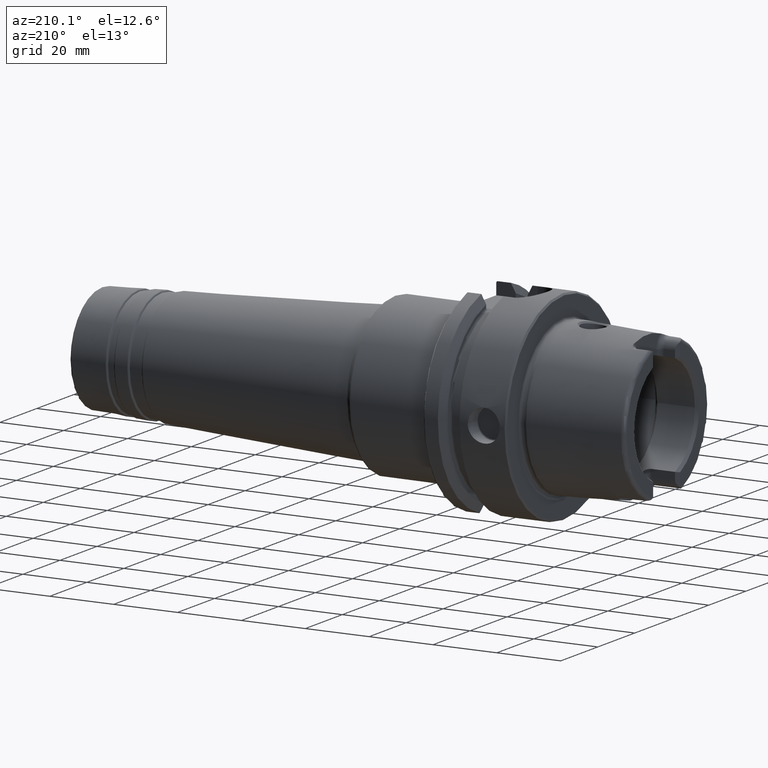
[diagram: clean part render]
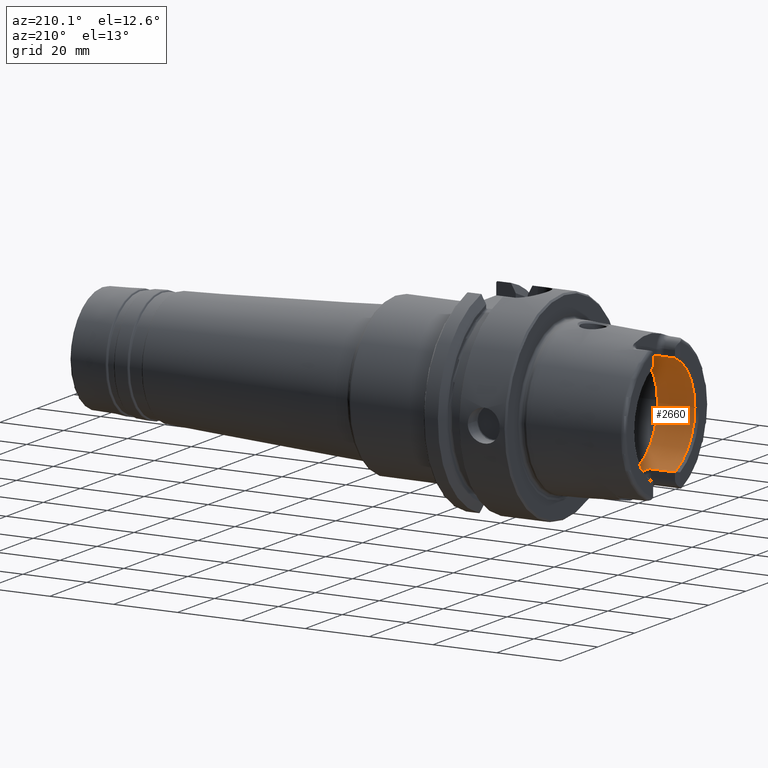
[diagram: same view with one face highlighted and labeled with its STEP entity id]
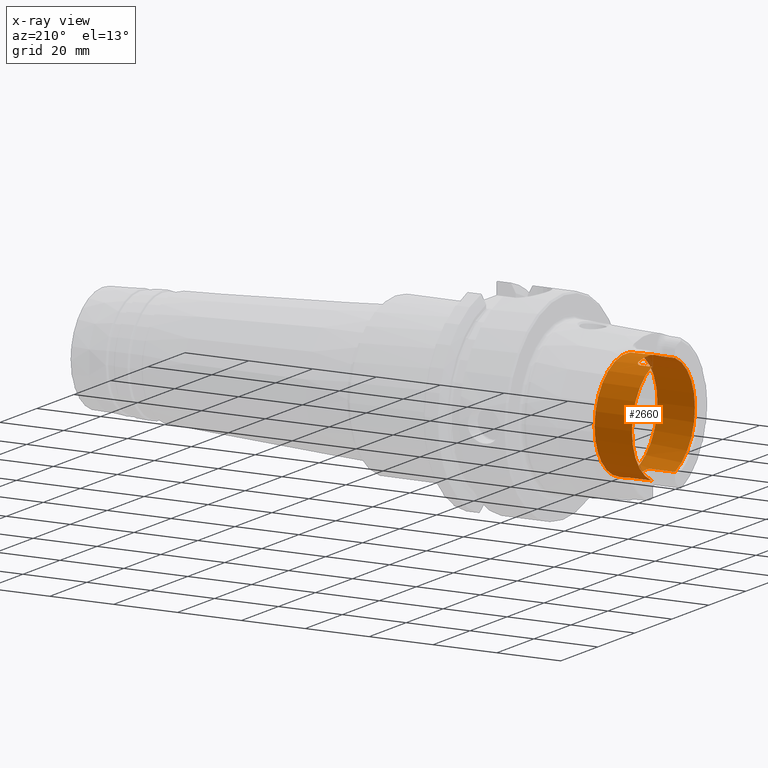
[diagram: x-ray of the same camera — body ghosted, the highlighted face saturated]
A machine part, auxiliary view. The second image highlights one B-rep face of the part: STEP entity #2660.
The next image is the same camera in x-ray: the body ghosted, the highlighted face saturated — about 1% of this face is hidden behind the body in this view.
In plain terms, the highlighted cylindrical surface (bore or boss wall) has radius 17 mm, axis along (-1, 0, 0).
Its self-contained STEP definition (entity closure, byte-faithful):
#84=B_SPLINE_CURVE_WITH_KNOTS('',3,(#5384,#5385,#5386,#5387,#5388,#5389,
#5390,#5391,#5392,#5393),.UNSPECIFIED.,.F.,.F.,(4,2,2,2,4),(0.229569660485746,
0.289239803007022,0.348909945528297,0.405407845050218,0.46190574457214),
 .UNSPECIFIED.);
#85=B_SPLINE_CURVE_WITH_KNOTS('',3,(#5402,#5403,#5404,#5405,#5406,#5407,
#5408,#5409,#5410,#5411),.UNSPECIFIED.,.F.,.F.,(4,2,2,2,4),(0.46190574457214,
0.519239917776744,0.576574090981348,0.635410522815223,0.694246954649097),
 .UNSPECIFIED.);
#86=B_SPLINE_CURVE_WITH_KNOTS('',3,(#5424,#5425,#5426,#5427,#5428,#5429,
#5430,#5431,#5432,#5433),.UNSPECIFIED.,.F.,.F.,(4,2,2,2,4),(0.461905744572139,
0.518403644094061,0.574901543615982,0.634571686137257,0.694241828658533),
 .UNSPECIFIED.);
#87=B_SPLINE_CURVE_WITH_KNOTS('',3,(#5453,#5454,#5455,#5456,#5457,#5458,
#5459,#5460,#5461,#5462),.UNSPECIFIED.,.F.,.F.,(4,2,2,2,4),(0.229569660485747,
0.289239803007022,0.348909945528297,0.405407845050218,0.46190574457214),
 .UNSPECIFIED.);
#177=CYLINDRICAL_SURFACE('',#3006,17.);
#215=LINE('',#4227,#332);
#220=LINE('',#4277,#337);
#224=LINE('',#4341,#341);
#288=LINE('',#5449,#405);
#292=LINE('',#5499,#409);
#332=VECTOR('',#3411,10.);
#337=VECTOR('',#3430,10.);
#341=VECTOR('',#3452,10.);
#405=VECTOR('',#3746,10.);
#409=VECTOR('',#3792,17.);
#554=FACE_OUTER_BOUND('',#697,.T.);
#697=EDGE_LOOP('',(#2366,#2367,#2368,#2369,#2370,#2371,#2372,#2373,#2374,
#2375,#2376,#2377,#2378,#2379,#2380,#2381,#2382,#2383));
#830=CIRCLE('',#2847,17.);
#831=CIRCLE('',#2848,17.);
#900=CIRCLE('',#2985,17.);
#905=CIRCLE('',#2997,17.);
#907=CIRCLE('',#3004,17.);
#909=CIRCLE('',#3007,17.);
#910=CIRCLE('',#3008,17.);
#911=CIRCLE('',#3009,17.);
#1053=VERTEX_POINT('',#4194);
#1055=VERTEX_POINT('',#4200);
#1056=VERTEX_POINT('',#4202);
#1062=VERTEX_POINT('',#4217);
#1065=VERTEX_POINT('',#4225);
#1073=VERTEX_POINT('',#4275);
#1079=VERTEX_POINT('',#4308);
#1084=VERTEX_POINT('',#4340);
#1201=VERTEX_POINT('',#5382);
#1203=VERTEX_POINT('',#5401);
#1207=VERTEX_POINT('',#5422);
#1208=VERTEX_POINT('',#5423);
#1210=VERTEX_POINT('',#5443);
#1212=VERTEX_POINT('',#5494);
#1213=VERTEX_POINT('',#5495);
#1214=VERTEX_POINT('',#5497);
#1379=EDGE_CURVE('',#1055,#1056,#830,.T.);
#1380=EDGE_CURVE('',#1056,#1053,#831,.T.);
#1391=EDGE_CURVE('',#1062,#1065,#215,.T.);
#1402=EDGE_CURVE('',#1055,#1073,#220,.T.);
#1415=EDGE_CURVE('',#1084,#1079,#224,.T.);
#1585=EDGE_CURVE('',#1201,#1073,#84,.T.);
#1589=EDGE_CURVE('',#1084,#1203,#85,.T.);
#1595=EDGE_CURVE('',#1207,#1208,#86,.T.);
#1601=EDGE_CURVE('',#1210,#1208,#900,.T.);
#1604=EDGE_CURVE('',#1207,#1053,#288,.T.);
#1607=EDGE_CURVE('',#1210,#1065,#87,.T.);
#1611=EDGE_CURVE('',#1201,#1203,#905,.T.);
#1615=EDGE_CURVE('',#1062,#1079,#907,.T.);
#1617=EDGE_CURVE('',#1212,#1213,#909,.T.);
#1618=EDGE_CURVE('',#1214,#1212,#910,.T.);
#1619=EDGE_CURVE('',#1214,#1056,#292,.T.);
#1620=EDGE_CURVE('',#1213,#1214,#911,.T.);
#2366=ORIENTED_EDGE('',*,*,#1617,.F.);
#2367=ORIENTED_EDGE('',*,*,#1618,.F.);
#2368=ORIENTED_EDGE('',*,*,#1619,.T.);
#2369=ORIENTED_EDGE('',*,*,#1379,.F.);
#2370=ORIENTED_EDGE('',*,*,#1402,.T.);
#2371=ORIENTED_EDGE('',*,*,#1585,.F.);
#2372=ORIENTED_EDGE('',*,*,#1611,.T.);
#2373=ORIENTED_EDGE('',*,*,#1589,.F.);
#2374=ORIENTED_EDGE('',*,*,#1415,.T.);
#2375=ORIENTED_EDGE('',*,*,#1615,.F.);
#2376=ORIENTED_EDGE('',*,*,#1391,.T.);
#2377=ORIENTED_EDGE('',*,*,#1607,.F.);
#2378=ORIENTED_EDGE('',*,*,#1601,.T.);
#2379=ORIENTED_EDGE('',*,*,#1595,.F.);
#2380=ORIENTED_EDGE('',*,*,#1604,.T.);
#2381=ORIENTED_EDGE('',*,*,#1380,.F.);
#2382=ORIENTED_EDGE('',*,*,#1619,.F.);
#2383=ORIENTED_EDGE('',*,*,#1620,.F.);
#2660=ADVANCED_FACE('',(#554),#177,.F.);
#2847=AXIS2_PLACEMENT_3D('',#4203,#3386,#3387);
#2848=AXIS2_PLACEMENT_3D('',#4204,#3388,#3389);
#2985=AXIS2_PLACEMENT_3D('',#5444,#3739,#3740);
#2997=AXIS2_PLACEMENT_3D('',#5471,#3767,#3768);
#3004=AXIS2_PLACEMENT_3D('',#5491,#3782,#3783);
#3006=AXIS2_PLACEMENT_3D('',#5493,#3786,#3787);
#3007=AXIS2_PLACEMENT_3D('',#5496,#3788,#3789);
#3008=AXIS2_PLACEMENT_3D('',#5498,#3790,#3791);
#3009=AXIS2_PLACEMENT_3D('',#5500,#3793,#3794);
#3386=DIRECTION('center_axis',(1.,0.,0.));
#3387=DIRECTION('ref_axis',(0.,-1.,0.));
#3388=DIRECTION('center_axis',(1.,0.,0.));
#3389=DIRECTION('ref_axis',(0.,-1.,0.));
#3411=DIRECTION('',(1.,0.,0.));
#3430=DIRECTION('',(1.,0.,0.));
#3452=DIRECTION('',(-1.,0.,0.));
#3739=DIRECTION('center_axis',(-1.,0.,0.));
#3740=DIRECTION('ref_axis',(0.,1.,0.));
#3746=DIRECTION('',(-1.,0.,0.));
#3767=DIRECTION('center_axis',(-1.,0.,0.));
#3768=DIRECTION('ref_axis',(0.,1.,0.));
#3782=DIRECTION('center_axis',(1.,0.,0.));
#3783=DIRECTION('ref_axis',(0.,-1.,0.));
#3786=DIRECTION('center_axis',(-1.,0.,0.));
#3787=DIRECTION('ref_axis',(0.,1.,0.));
#3788=DIRECTION('center_axis',(-1.,0.,0.));
#3789=DIRECTION('ref_axis',(0.,0.,1.));
#3790=DIRECTION('center_axis',(-1.,0.,0.));
#3791=DIRECTION('ref_axis',(0.,0.,1.));
#3792=DIRECTION('',(-1.,0.,0.));
#3793=DIRECTION('center_axis',(-1.,0.,0.));
#3794=DIRECTION('ref_axis',(0.,0.,1.));
#4194=CARTESIAN_POINT('',(-31.,-6.27,-15.8014904360317));
#4200=CARTESIAN_POINT('',(-31.,-6.27,15.8014904360317));
#4202=CARTESIAN_POINT('',(-31.,-17.,2.0818995585505E-15));
#4203=CARTESIAN_POINT('Origin',(-31.,0.,0.));
#4204=CARTESIAN_POINT('Origin',(-31.,0.,0.));
#4217=CARTESIAN_POINT('',(-31.,6.27,-15.8014904360317));
#4225=CARTESIAN_POINT('',(-23.5,6.27,-15.8014904360317));
#4227=CARTESIAN_POINT('',(-25.6423502691896,6.27,-15.8014904360317));
#4275=CARTESIAN_POINT('',(-27.5,-6.27,15.8014904360317));
#4277=CARTESIAN_POINT('',(-25.6423502691896,-6.27,15.8014904360317));
#4308=CARTESIAN_POINT('',(-31.,6.27,15.8014904360317));
#4340=CARTESIAN_POINT('',(-27.5,6.27,15.8014904360317));
#4341=CARTESIAN_POINT('',(-25.6423502691896,6.27,15.8014904360317));
#5382=CARTESIAN_POINT('',(-26.,-4.77,16.3170800083839));
#5384=CARTESIAN_POINT('Ctrl Pts',(-26.,-4.77,16.3170800083839));
#5385=CARTESIAN_POINT('Ctrl Pts',(-26.,-4.96091029208457,16.2612708750845));
#5386=CARTESIAN_POINT('Ctrl Pts',(-26.0385404635846,-5.16378617408596,16.1979610859593));
#5387=CARTESIAN_POINT('Ctrl Pts',(-26.1950909803916,-5.53690543536203,16.0742436586733));
#5388=CARTESIAN_POINT('Ctrl Pts',(-26.3130861154278,-5.70721093092864,16.01400454532));
#5389=CARTESIAN_POINT('Ctrl Pts',(-26.5811791540138,-5.96960590306613,15.9179857910505));
#5390=CARTESIAN_POINT('Ctrl Pts',(-26.7467155703026,-6.082078486584,15.8749745356799));
#5391=CARTESIAN_POINT('Ctrl Pts',(-27.1119229195206,-6.23232125085234,15.8165946761251));
#5392=CARTESIAN_POINT('Ctrl Pts',(-27.3116736682603,-6.27,15.8014904360317));
#5393=CARTESIAN_POINT('Ctrl Pts',(-27.5,-6.27,15.8014904360317));
#5401=CARTESIAN_POINT('',(-26.,4.77,16.3170800083839));
#5402=CARTESIAN_POINT('Ctrl Pts',(-27.5,6.27,15.8014904360317));
#5403=CARTESIAN_POINT('Ctrl Pts',(-27.308886089318,6.27,15.8014904360317));
#5404=CARTESIAN_POINT('Ctrl Pts',(-27.1064099842243,6.23121026569193,15.8170435837256));
#5405=CARTESIAN_POINT('Ctrl Pts',(-26.7371019784685,6.07691823919465,15.8769617281184));
#5406=CARTESIAN_POINT('Ctrl Pts',(-26.5701870418163,5.96150738537594,15.9210500039306));
#5407=CARTESIAN_POINT('Ctrl Pts',(-26.3050641818979,5.69638452545756,16.017853695422));
#5408=CARTESIAN_POINT('Ctrl Pts',(-26.1900212186221,5.52750941197086,16.0774506535614));
#5409=CARTESIAN_POINT('Ctrl Pts',(-26.0374824299787,5.15846789211413,16.1996292802954));
#5410=CARTESIAN_POINT('Ctrl Pts',(-26.,4.95824289522375,16.2620506397863));
#5411=CARTESIAN_POINT('Ctrl Pts',(-26.,4.77,16.3170800083839));
#5422=CARTESIAN_POINT('',(-23.5,-6.27,-15.8014904360317));
#5423=CARTESIAN_POINT('',(-22.,-4.77,-16.3170800083839));
#5424=CARTESIAN_POINT('Ctrl Pts',(-23.5,-6.27,-15.8014904360317));
#5425=CARTESIAN_POINT('Ctrl Pts',(-23.3116736682603,-6.27,-15.8014904360317));
#5426=CARTESIAN_POINT('Ctrl Pts',(-23.1119229195206,-6.23232125085234,-15.8165946761251));
#5427=CARTESIAN_POINT('Ctrl Pts',(-22.7467155703026,-6.082078486584,-15.8749745356799));
#5428=CARTESIAN_POINT('Ctrl Pts',(-22.5811791540138,-5.96960590306613,-15.9179857910505));
#5429=CARTESIAN_POINT('Ctrl Pts',(-22.3130861154278,-5.70721093092864,-16.01400454532));
#5430=CARTESIAN_POINT('Ctrl Pts',(-22.1950909803916,-5.53690543536204,-16.0742436586733));
#5431=CARTESIAN_POINT('Ctrl Pts',(-22.0385404635846,-5.16378617408596,-16.1979610859593));
#5432=CARTESIAN_POINT('Ctrl Pts',(-22.,-4.96091029208457,-16.2612708750845));
#5433=CARTESIAN_POINT('Ctrl Pts',(-22.,-4.77,-16.3170800083839));
#5443=CARTESIAN_POINT('',(-22.,4.77,-16.3170800083839));
#5444=CARTESIAN_POINT('Origin',(-22.,0.,0.));
#5449=CARTESIAN_POINT('',(-25.6423502691896,-6.27,-15.8014904360317));
#5453=CARTESIAN_POINT('Ctrl Pts',(-22.,4.77,-16.3170800083839));
#5454=CARTESIAN_POINT('Ctrl Pts',(-22.,4.96091029208457,-16.2612708750845));
#5455=CARTESIAN_POINT('Ctrl Pts',(-22.0385404635846,5.16378617408596,-16.1979610859593));
#5456=CARTESIAN_POINT('Ctrl Pts',(-22.1950909803916,5.53690543536204,-16.0742436586733));
#5457=CARTESIAN_POINT('Ctrl Pts',(-22.3130861154278,5.70721093092864,-16.01400454532));
#5458=CARTESIAN_POINT('Ctrl Pts',(-22.5811791540138,5.96960590306613,-15.9179857910505));
#5459=CARTESIAN_POINT('Ctrl Pts',(-22.7467155703026,6.082078486584,-15.8749745356799));
#5460=CARTESIAN_POINT('Ctrl Pts',(-23.1119229195206,6.23232125085234,-15.8165946761251));
#5461=CARTESIAN_POINT('Ctrl Pts',(-23.3116736682603,6.27,-15.8014904360317));
#5462=CARTESIAN_POINT('Ctrl Pts',(-23.5,6.27,-15.8014904360317));
#5471=CARTESIAN_POINT('Origin',(-26.,0.,0.));
#5491=CARTESIAN_POINT('Origin',(-31.,0.,0.));
#5493=CARTESIAN_POINT('Origin',(-25.6423502691896,0.,0.));
#5494=CARTESIAN_POINT('',(-19.2847005383793,17.,0.));
#5495=CARTESIAN_POINT('',(-19.2847005383793,-2.0818995585505E-15,-17.));
#5496=CARTESIAN_POINT('Origin',(-19.2847005383793,0.,0.));
#5497=CARTESIAN_POINT('',(-19.2847005383793,-17.,2.0818995585505E-15));
#5498=CARTESIAN_POINT('Origin',(-19.2847005383793,0.,0.));
#5499=CARTESIAN_POINT('',(-25.6423502691896,-17.,2.0818995585505E-15));
#5500=CARTESIAN_POINT('Origin',(-19.2847005383793,0.,0.));